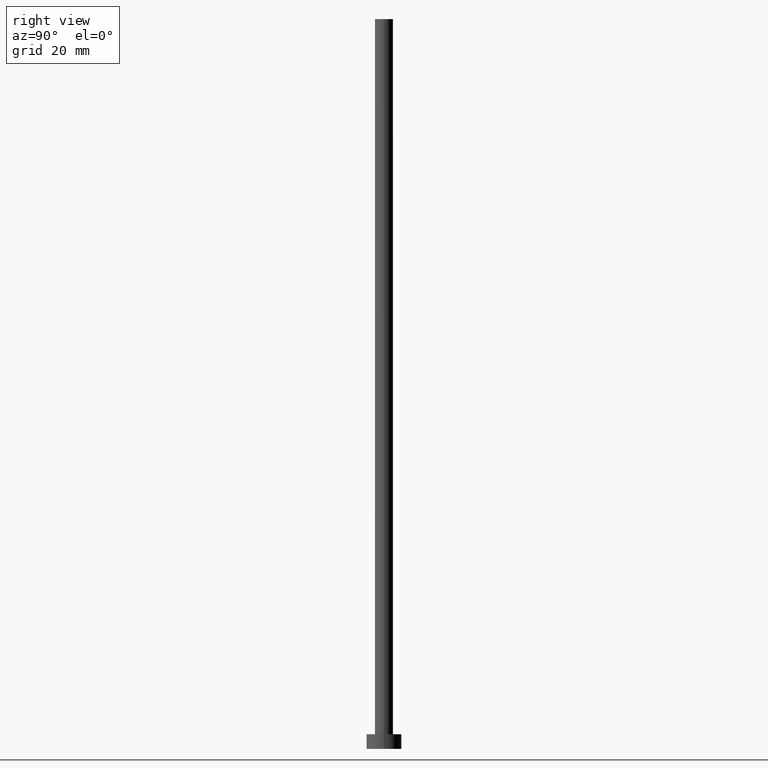
[diagram: clean part render]
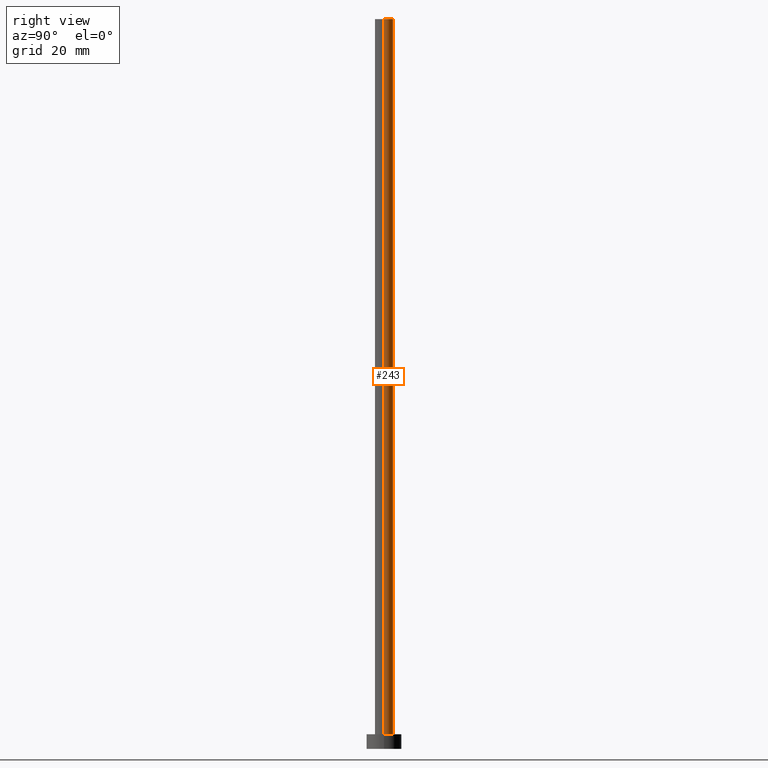
[diagram: same view with one face highlighted and labeled with its STEP entity id]
A machine part, right view. The second image highlights one B-rep face of the part: STEP entity #243.
In plain terms, the highlighted cylindrical surface (edge-blend (fillet) strip) has radius 3.1 mm, axis along (-0, -0, -1).
Its self-contained STEP definition (entity closure, byte-faithful):
#2 = ORIENTED_EDGE ( 'NONE', *, *, #168, .F. ) ;
#4 = ORIENTED_EDGE ( 'NONE', *, *, #51, .F. ) ;
#10 = DIRECTION ( 'NONE',  ( -0.000000000000000000, -0.000000000000000000, -1.000000000000000000 ) ) ;
#13 = AXIS2_PLACEMENT_3D ( 'NONE', #216, #87, #73 ) ;
#15 = DIRECTION ( 'NONE',  ( 1.000000000000000000, 0.000000000000000000, 0.000000000000000000 ) ) ;
#16 = LINE ( 'NONE', #197, #220 ) ;
#17 = VECTOR ( 'NONE', #126, 1000.000000000000000 ) ;
#23 = CARTESIAN_POINT ( 'NONE',  ( -3.100000000000000089, 0.000000000000000000, 5.000000000000000000 ) ) ;
#26 = DIRECTION ( 'NONE',  ( -0.000000000000000000, -0.000000000000000000, -1.000000000000000000 ) ) ;
#29 = CARTESIAN_POINT ( 'NONE',  ( 3.100000000000000089, 3.796405077356794918E-16, 250.0000000000000000 ) ) ;
#36 = EDGE_LOOP ( 'NONE', ( #2, #140, #65, #4 ) ) ;
#38 = CIRCLE ( 'NONE', #180, 3.100000000000000089 ) ;
#48 = FACE_OUTER_BOUND ( 'NONE', #36, .T. ) ;
#49 = CARTESIAN_POINT ( 'NONE',  ( -3.100000000000000089, 0.000000000000000000, 250.0000000000000000 ) ) ;
#51 = EDGE_CURVE ( 'NONE', #99, #189, #164, .T. ) ;
#64 = CIRCLE ( 'NONE', #13, 3.100000000000000089 ) ;
#65 = ORIENTED_EDGE ( 'NONE', *, *, #82, .T. ) ;
#73 = DIRECTION ( 'NONE',  ( 1.000000000000000000, 0.000000000000000000, 0.000000000000000000 ) ) ;
#82 = EDGE_CURVE ( 'NONE', #237, #189, #38, .T. ) ;
#87 = DIRECTION ( 'NONE',  ( 0.000000000000000000, 0.000000000000000000, 1.000000000000000000 ) ) ;
#89 = DIRECTION ( 'NONE',  ( -1.000000000000000000, 0.000000000000000000, 0.000000000000000000 ) ) ;
#99 = VERTEX_POINT ( 'NONE', #191 ) ;
#106 = CARTESIAN_POINT ( 'NONE',  ( 3.100000000000000089, 3.796405077356794918E-16, 5.000000000000000000 ) ) ;
#126 = DIRECTION ( 'NONE',  ( -0.000000000000000000, -0.000000000000000000, -1.000000000000000000 ) ) ;
#140 = ORIENTED_EDGE ( 'NONE', *, *, #146, .T. ) ;
#144 = CYLINDRICAL_SURFACE ( 'NONE', #226, 3.100000000000000089 ) ;
#146 = EDGE_CURVE ( 'NONE', #198, #237, #16, .T. ) ;
#164 = LINE ( 'NONE', #49, #17 ) ;
#168 = EDGE_CURVE ( 'NONE', #198, #99, #64, .T. ) ;
#180 = AXIS2_PLACEMENT_3D ( 'NONE', #208, #192, #15 ) ;
#189 = VERTEX_POINT ( 'NONE', #23 ) ;
#191 = CARTESIAN_POINT ( 'NONE',  ( -3.100000000000000089, 0.000000000000000000, 250.0000000000000000 ) ) ;
#192 = DIRECTION ( 'NONE',  ( 0.000000000000000000, 0.000000000000000000, 1.000000000000000000 ) ) ;
#197 = CARTESIAN_POINT ( 'NONE',  ( 3.100000000000000089, 3.796405077356794918E-16, 250.0000000000000000 ) ) ;
#198 = VERTEX_POINT ( 'NONE', #29 ) ;
#208 = CARTESIAN_POINT ( 'NONE',  ( 0.000000000000000000, 0.000000000000000000, 5.000000000000000000 ) ) ;
#216 = CARTESIAN_POINT ( 'NONE',  ( 0.000000000000000000, 0.000000000000000000, 250.0000000000000000 ) ) ;
#220 = VECTOR ( 'NONE', #26, 1000.000000000000000 ) ;
#221 = CARTESIAN_POINT ( 'NONE',  ( 0.000000000000000000, 0.000000000000000000, 250.0000000000000000 ) ) ;
#226 = AXIS2_PLACEMENT_3D ( 'NONE', #221, #10, #89 ) ;
#237 = VERTEX_POINT ( 'NONE', #106 ) ;
#243 = ADVANCED_FACE ( 'NONE', ( #48 ), #144, .T. ) ;